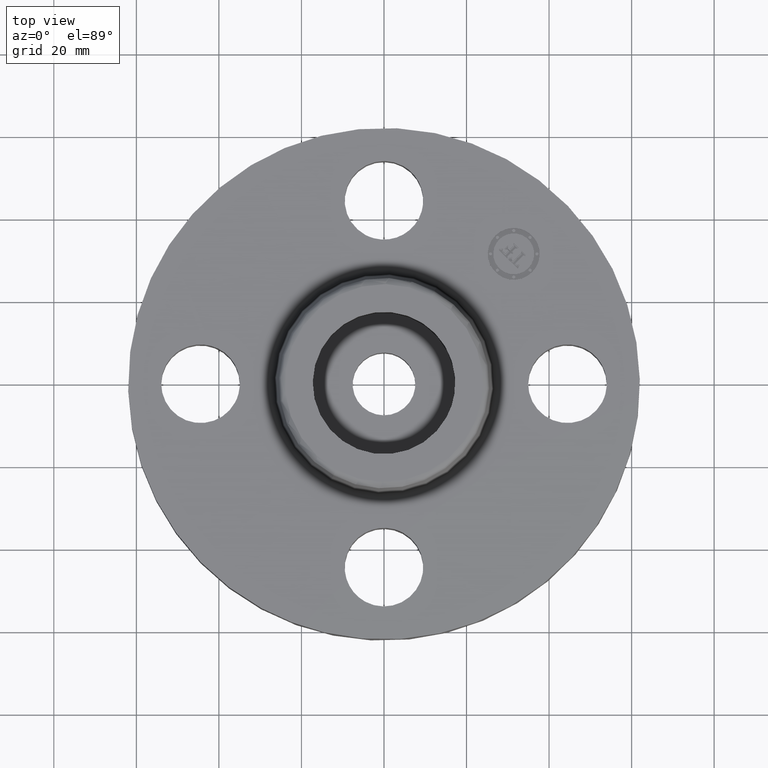
[diagram: clean part render]
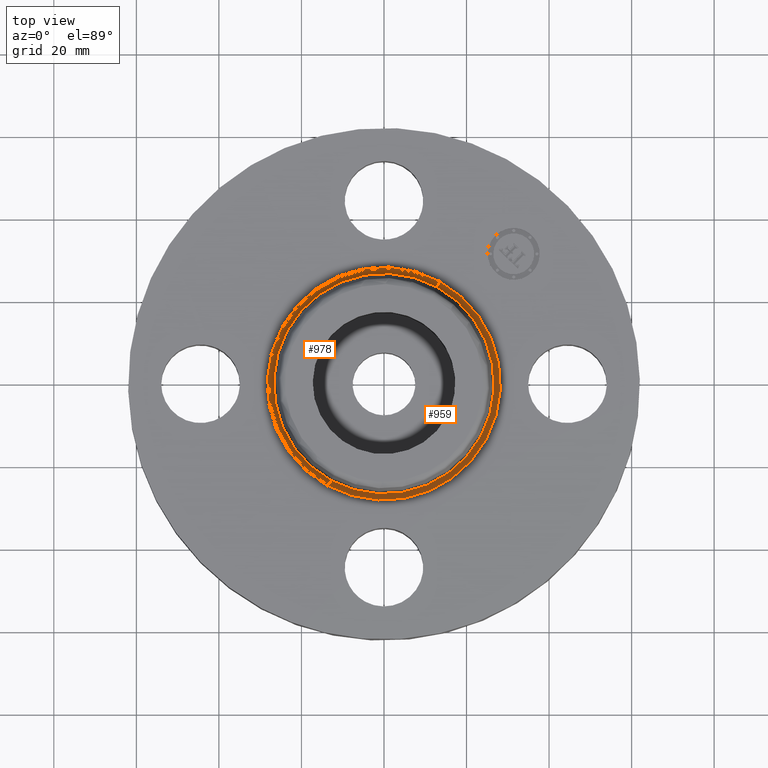
[diagram: same view with one multi-face feature highlighted, each face labeled with its STEP entity id]
A machine part, top view. The highlighted faces form ONE feature: a constant-radius fillet chain: 2 tangent blend faces with common blend radius 1.524 mm. The faces share edges in the B-rep.
Their STEP definitions:
[1] entity #978 (Torus):
#852=AXIS2_PLACEMENT_3D('Circle Axis2P3D',#850,#851,$) ;
#884=AXIS2_PLACEMENT_3D('Circle Axis2P3D',#882,#883,$) ;
#945=AXIS2_PLACEMENT_3D('Circle Axis2P3D',#943,#944,$) ;
#950=AXIS2_PLACEMENT_3D('Circle Axis2P3D',#948,#949,$) ;
#970=AXIS2_PLACEMENT_3D('Torus Axis2P3D',#967,#968,#969) ;
#816=CARTESIAN_POINT('Vertex',(0.503999699238,0.922565261201,0.739581109345)) ;
#818=CARTESIAN_POINT('Vertex',(-0.503999699238,-0.922565261201,0.739581109344)) ;
#850=CARTESIAN_POINT('Axis2P3D Location',(0.,0.,0.739581109343)) ;
#882=CARTESIAN_POINT('Axis2P3D Location',(2.79741234551E-016,1.82133922992E-011,0.690000000003)) ;
#886=CARTESIAN_POINT('Vertex',(-0.532328218482,-0.974420267852,0.690000000003)) ;
#888=CARTESIAN_POINT('Vertex',(0.53232821848,0.974420267848,0.690000000003)) ;
#943=CARTESIAN_POINT('Axis2P3D Location',(0.532328218483,0.974420267852,0.750000000003)) ;
#948=CARTESIAN_POINT('Axis2P3D Location',(-0.532328218483,-0.974420267852,0.750000000003)) ;
#967=CARTESIAN_POINT('Axis2P3D Location',(0.,0.,0.750000000003)) ;
#851=DIRECTION('Axis2P3D Direction',(-0.,0.,-0.0393700787402)) ;
#883=DIRECTION('Axis2P3D Direction',(0.,0.,-0.0393700787402)) ;
#944=DIRECTION('Axis2P3D Direction',(-0.0345504945626,0.0188750212049,0.)) ;
#949=DIRECTION('Axis2P3D Direction',(0.0345504945626,-0.0188750212049,0.)) ;
#968=DIRECTION('Axis2P3D Direction',(0.,0.,-0.0393700787402)) ;
#969=DIRECTION('Axis2P3D XDirection',(-0.0188750212049,-0.0345504945626,0.)) ;
#973=ORIENTED_EDGE('',*,*,#890,.F.) ;
#974=ORIENTED_EDGE('',*,*,#952,.T.) ;
#975=ORIENTED_EDGE('',*,*,#854,.T.) ;
#976=ORIENTED_EDGE('',*,*,#947,.F.) ;
#978=ADVANCED_FACE('PartBody',(#977),#971,.F.) ;
#853=CIRCLE('generated circle',#852,1.05125751269) ;
#885=CIRCLE('generated circle',#884,1.11034597788) ;
#946=CIRCLE('generated circle',#945,0.0600000000002) ;
#951=CIRCLE('generated circle',#950,0.0600000000002) ;
#971=TOROIDAL_SURFACE('homeo Torus',#970,1.11034597788,0.0600000000002) ;
#854=EDGE_CURVE('',#819,#817,#853,.T.) ;
#890=EDGE_CURVE('',#887,#889,#885,.T.) ;
#947=EDGE_CURVE('',#889,#817,#946,.T.) ;
#952=EDGE_CURVE('',#887,#819,#951,.T.) ;
#972=EDGE_LOOP('',(#973,#974,#975,#976)) ;
#977=FACE_OUTER_BOUND('',#972,.T.) ;
#817=VERTEX_POINT('',#816) ;
#819=VERTEX_POINT('',#818) ;
#887=VERTEX_POINT('',#886) ;
#889=VERTEX_POINT('',#888) ;
[2] entity #959 (Torus):
#814=AXIS2_PLACEMENT_3D('Circle Axis2P3D',#812,#813,$) ;
#893=AXIS2_PLACEMENT_3D('Circle Axis2P3D',#891,#892,$) ;
#941=AXIS2_PLACEMENT_3D('Torus Axis2P3D',#938,#939,#940) ;
#945=AXIS2_PLACEMENT_3D('Circle Axis2P3D',#943,#944,$) ;
#950=AXIS2_PLACEMENT_3D('Circle Axis2P3D',#948,#949,$) ;
#812=CARTESIAN_POINT('Axis2P3D Location',(0.,0.,0.739581109343)) ;
#816=CARTESIAN_POINT('Vertex',(0.503999699238,0.922565261201,0.739581109345)) ;
#818=CARTESIAN_POINT('Vertex',(-0.503999699238,-0.922565261201,0.739581109344)) ;
#886=CARTESIAN_POINT('Vertex',(-0.532328218482,-0.974420267852,0.690000000003)) ;
#888=CARTESIAN_POINT('Vertex',(0.53232821848,0.974420267848,0.690000000003)) ;
#891=CARTESIAN_POINT('Axis2P3D Location',(-2.79741234551E-016,1.82133922992E-011,0.690000000003)) ;
#938=CARTESIAN_POINT('Axis2P3D Location',(0.,0.,0.750000000003)) ;
#943=CARTESIAN_POINT('Axis2P3D Location',(0.532328218483,0.974420267852,0.750000000003)) ;
#948=CARTESIAN_POINT('Axis2P3D Location',(-0.532328218483,-0.974420267852,0.750000000003)) ;
#813=DIRECTION('Axis2P3D Direction',(-0.,0.,-0.0393700787402)) ;
#892=DIRECTION('Axis2P3D Direction',(0.,0.,-0.0393700787402)) ;
#939=DIRECTION('Axis2P3D Direction',(0.,0.,-0.0393700787402)) ;
#940=DIRECTION('Axis2P3D XDirection',(0.0188750212049,0.0345504945626,0.)) ;
#944=DIRECTION('Axis2P3D Direction',(-0.0345504945626,0.0188750212049,0.)) ;
#949=DIRECTION('Axis2P3D Direction',(0.0345504945626,-0.0188750212049,0.)) ;
#954=ORIENTED_EDGE('',*,*,#895,.F.) ;
#955=ORIENTED_EDGE('',*,*,#947,.T.) ;
#956=ORIENTED_EDGE('',*,*,#820,.T.) ;
#957=ORIENTED_EDGE('',*,*,#952,.F.) ;
#959=ADVANCED_FACE('PartBody',(#958),#942,.F.) ;
#815=CIRCLE('generated circle',#814,1.05125751269) ;
#894=CIRCLE('generated circle',#893,1.11034597788) ;
#946=CIRCLE('generated circle',#945,0.0600000000002) ;
#951=CIRCLE('generated circle',#950,0.0600000000002) ;
#942=TOROIDAL_SURFACE('homeo Torus',#941,1.11034597788,0.0600000000002) ;
#820=EDGE_CURVE('',#817,#819,#815,.T.) ;
#895=EDGE_CURVE('',#889,#887,#894,.T.) ;
#947=EDGE_CURVE('',#889,#817,#946,.T.) ;
#952=EDGE_CURVE('',#887,#819,#951,.T.) ;
#953=EDGE_LOOP('',(#954,#955,#956,#957)) ;
#958=FACE_OUTER_BOUND('',#953,.T.) ;
#817=VERTEX_POINT('',#816) ;
#819=VERTEX_POINT('',#818) ;
#887=VERTEX_POINT('',#886) ;
#889=VERTEX_POINT('',#888) ;